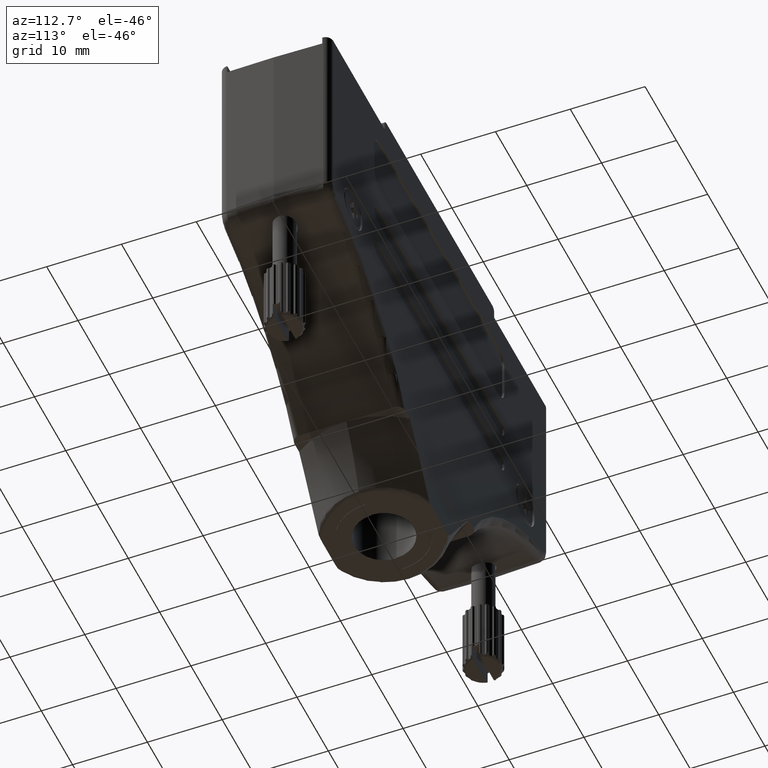
[diagram: clean part render]
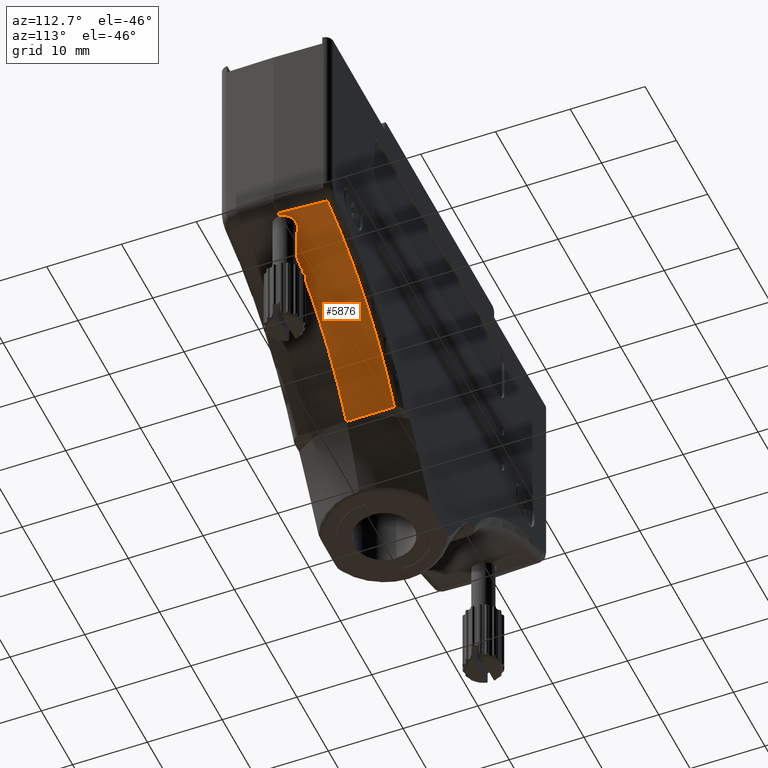
[diagram: same view with one face highlighted and labeled with its STEP entity id]
A machine part, auxiliary view. The second image highlights one B-rep face of the part: STEP entity #5876.
In plain terms, the highlighted cylindrical surface (partial cylindrical patch) has radius 36.7113 mm, axis along (-0, -1, -0).
Its self-contained STEP definition (entity closure, byte-faithful):
#1419 = CYLINDRICAL_SURFACE ( 'NONE', #16395, 36.71126982180972220 ) ;
#1708 = VERTEX_POINT ( 'NONE', #6583 ) ;
#1860 = LINE ( 'NONE', #3828, #2525 ) ;
#1962 = DIRECTION ( 'NONE',  ( -0.000000000000000000, -1.000000000000000000, 0.000000000000000000 ) ) ;
#2048 = CARTESIAN_POINT ( 'NONE',  ( -33.65749201946204039, -2.135932111310845816, -27.89259562632341272 ) ) ;
#2093 = CARTESIAN_POINT ( 'NONE',  ( -33.34999999999999432, -0.2172257269678418423, -27.97736816581497266 ) ) ;
#2328 = ORIENTED_EDGE ( 'NONE', *, *, #16424, .T. ) ;
#2343 = CARTESIAN_POINT ( 'NONE',  ( -31.63974383908267640, -1.599454190310966917, -28.50100463175703780 ) ) ;
#2511 = ORIENTED_EDGE ( 'NONE', *, *, #9136, .T. ) ;
#2525 = VECTOR ( 'NONE', #18827, 1000.000000000000000 ) ;
#2597 = CARTESIAN_POINT ( 'NONE',  ( -32.43850471015925763, -1.447988229824081374, -28.24503779083169519 ) ) ;
#3420 = VERTEX_POINT ( 'NONE', #23496 ) ;
#3538 = CIRCLE ( 'NONE', #23573, 36.71126982180972220 ) ;
#3656 =( BOUNDED_CURVE ( )  B_SPLINE_CURVE ( 3, ( #13135, #9571, #2048, #9702 ),
 .UNSPECIFIED., .F., .F. ) 
 B_SPLINE_CURVE_WITH_KNOTS ( ( 4, 4 ),
 ( 4.442254719440811073, 4.451234110736428384 ),
 .UNSPECIFIED. ) 
 CURVE ( )  GEOMETRIC_REPRESENTATION_ITEM ( )  RATIONAL_B_SPLINE_CURVE ( ( 1.000000000000000000, 0.9999932808889498981, 0.9999932808889498981, 1.000000000000000000 ) ) 
 REPRESENTATION_ITEM ( '' )  );
#3828 = CARTESIAN_POINT ( 'NONE',  ( -12.00182045457186319, -83.27524299796344565, -44.04999999999999005 ) ) ;
#3940 = DIRECTION ( 'NONE',  ( 0.000000000000000000, 0.000000000000000000, -1.000000000000000000 ) ) ;
#3959 = CARTESIAN_POINT ( 'NONE',  ( -32.70584942024062514, -1.287279212786575311, -28.16385400188723409 ) ) ;
#4707 = CIRCLE ( 'NONE', #10619, 36.71126982180972220 ) ;
#5388 = VERTEX_POINT ( 'NONE', #15111 ) ;
#5876 = ADVANCED_FACE ( 'NONE', ( #21970 ), #1419, .F. ) ;
#6159 = ORIENTED_EDGE ( 'NONE', *, *, #8438, .F. ) ;
#6171 = CARTESIAN_POINT ( 'NONE',  ( -32.78757376440607629, -1.222562826784352463, -28.13949963657072928 ) ) ;
#6239 = VERTEX_POINT ( 'NONE', #21194 ) ;
#6296 = CARTESIAN_POINT ( 'NONE',  ( -30.77973672701777019, -1.289020953029271332, -28.79919598772691458 ) ) ;
#6583 = CARTESIAN_POINT ( 'NONE',  ( -30.15000000000000213, 1.774346614351042933E-15, -29.03336873510264127 ) ) ;
#8001 = CARTESIAN_POINT ( 'NONE',  ( -30.15000000000000213, 1.774346614351042933E-15, -29.03336873510264127 ) ) ;
#8438 = EDGE_CURVE ( 'NONE', #10520, #1708, #4707, .T. ) ;
#8482 = B_SPLINE_CURVE_WITH_KNOTS ( 'NONE', 3,
 ( #8001, #9619, #11705, #9749, #13665, #22880, #19190, #6296, #13540, #21047, #11953, #11465, #2343, #9872, #20802, #22646, #15507, #2597, #23006, #3959, #6171, #15144, #21297, #13795, #2093, #17086 ),
 .UNSPECIFIED., .F., .F.,
 ( 4, 2, 2, 2, 2, 2, 2, 2, 2, 2, 2, 2, 4 ),
 ( 1.177666164395192714E-18, 0.0003210891310338258135, 0.0006421782620676504344, 0.001284356524135303905, 0.001926534786202957266, 0.002247623917236785899, 0.002568713048270614314, 0.002889802179304442296, 0.003210891310338270278, 0.003531980441372098260, 0.003853069572405926242, 0.004495247834473596951, 0.005137426096541267660 ),
 .UNSPECIFIED. ) ;
#9136 = EDGE_CURVE ( 'NONE', #6239, #5388, #3538, .T. ) ;
#9571 = CARTESIAN_POINT ( 'NONE',  ( -33.55146430885534414, -4.269279778844141227, -27.92144308516741091 ) ) ;
#9619 = CARTESIAN_POINT ( 'NONE',  ( -30.15000000000000568, -0.1086217101157255227, -29.03336873510265193 ) ) ;
#9702 = CARTESIAN_POINT ( 'NONE',  ( -33.76364817732611812, 0.000000000000000000, -27.86422448877492286 ) ) ;
#9749 = CARTESIAN_POINT ( 'NONE',  ( -30.20365866929434517, -0.4245462276933599233, -29.01292599533478622 ) ) ;
#9797 = DIRECTION ( 'NONE',  ( 0.000000000000000000, 0.000000000000000000, -1.000000000000000000 ) ) ;
#9872 = CARTESIAN_POINT ( 'NONE',  ( -31.84380121003119868, -1.600503502314263082, -28.43369094446218170 ) ) ;
#10301 = DIRECTION ( 'NONE',  ( 0.000000000000000000, 0.000000000000000000, 1.000000000000000000 ) ) ;
#10472 = CARTESIAN_POINT ( 'NONE',  ( -43.24236715719469260, 0.000000000000000000, -63.33070469798650493 ) ) ;
#10520 = VERTEX_POINT ( 'NONE', #22546 ) ;
#10619 = AXIS2_PLACEMENT_3D ( 'NONE', #10472, #19550, #17947 ) ;
#11160 = CARTESIAN_POINT ( 'NONE',  ( -43.24236715719469260, -6.400000000000003020, -63.33070469798650493 ) ) ;
#11465 = CARTESIAN_POINT ( 'NONE',  ( -31.53877317291414784, -1.589264183005321796, -28.53480902098867489 ) ) ;
#11604 = EDGE_CURVE ( 'NONE', #3420, #12499, #14793, .T. ) ;
#11705 = CARTESIAN_POINT ( 'NONE',  ( -30.16094569094726907, -0.2152148075253071668, -29.02918481126687666 ) ) ;
#11953 = CARTESIAN_POINT ( 'NONE',  ( -31.33892365189137763, -1.549643072417002942, -28.60266846169096056 ) ) ;
#12025 = EDGE_CURVE ( 'NONE', #5388, #12499, #3656, .T. ) ;
#12499 = VERTEX_POINT ( 'NONE', #20607 ) ;
#12501 = CARTESIAN_POINT ( 'NONE',  ( -43.24236715719469260, -83.27524299796344565, -63.33070469798650493 ) ) ;
#13135 = CARTESIAN_POINT ( 'NONE',  ( -33.44556718274192519, -6.399999999999995914, -27.95076628381908534 ) ) ;
#13464 = DIRECTION ( 'NONE',  ( 0.000000000000000000, -1.000000000000000000, 0.000000000000000000 ) ) ;
#13540 = CARTESIAN_POINT ( 'NONE',  ( -30.95615767112005301, -1.404090721711050094, -28.73581432346434283 ) ) ;
#13665 = CARTESIAN_POINT ( 'NONE',  ( -30.23602409653427259, -0.5283735715662347676, -29.00062532250666791 ) ) ;
#13795 = CARTESIAN_POINT ( 'NONE',  ( -33.30598325495436995, -0.4300910614656501818, -27.98960592449867946 ) ) ;
#14793 = CIRCLE ( 'NONE', #23022, 36.71126982180972220 ) ;
#15111 = CARTESIAN_POINT ( 'NONE',  ( -33.44556718274192519, -6.399999999999995914, -27.95076628381908534 ) ) ;
#15144 = CARTESIAN_POINT ( 'NONE',  ( -33.01573481591189108, -1.001395078809259820, -28.07225224458001378 ) ) ;
#15507 = CARTESIAN_POINT ( 'NONE',  ( -32.24624682273337584, -1.524613964434142543, -28.30481707633832755 ) ) ;
#15691 = EDGE_LOOP ( 'NONE', ( #2511, #16801, #15803, #15748, #6159, #2328 ) ) ;
#15748 = ORIENTED_EDGE ( 'NONE', *, *, #20268, .F. ) ;
#15803 = ORIENTED_EDGE ( 'NONE', *, *, #11604, .F. ) ;
#16090 = CARTESIAN_POINT ( 'NONE',  ( -43.24236715719469260, 0.000000000000000000, -63.33070469798650493 ) ) ;
#16395 = AXIS2_PLACEMENT_3D ( 'NONE', #12501, #19996, #10301 ) ;
#16424 = EDGE_CURVE ( 'NONE', #10520, #6239, #1860, .T. ) ;
#16801 = ORIENTED_EDGE ( 'NONE', *, *, #12025, .T. ) ;
#17086 = CARTESIAN_POINT ( 'NONE',  ( -33.35000000000000142, 1.340665745356841553E-15, -27.97736816581499752 ) ) ;
#17947 = DIRECTION ( 'NONE',  ( 0.000000000000000000, 0.000000000000000000, -1.000000000000000000 ) ) ;
#18827 = DIRECTION ( 'NONE',  ( -0.000000000000000000, -1.000000000000000000, -0.000000000000000000 ) ) ;
#19190 = CARTESIAN_POINT ( 'NONE',  ( -30.48323315555577651, -0.9991434321775271021, -28.90764918900927682 ) ) ;
#19550 = DIRECTION ( 'NONE',  ( -0.000000000000000000, -1.000000000000000000, 0.000000000000000000 ) ) ;
#19996 = DIRECTION ( 'NONE',  ( 0.000000000000000000, 1.000000000000000000, 0.000000000000000000 ) ) ;
#20268 = EDGE_CURVE ( 'NONE', #1708, #3420, #8482, .T. ) ;
#20607 = CARTESIAN_POINT ( 'NONE',  ( -33.76364817732611812, 0.000000000000000000, -27.86422448877492286 ) ) ;
#20802 = CARTESIAN_POINT ( 'NONE',  ( -31.94725806731534590, -1.591075109136796728, -28.40007423083723737 ) ) ;
#21047 = CARTESIAN_POINT ( 'NONE',  ( -31.23958453553234094, -1.519832277954207056, -28.63689323002240883 ) ) ;
#21194 = CARTESIAN_POINT ( 'NONE',  ( -12.00182045457186319, -6.400000000000003020, -44.04999999999999005 ) ) ;
#21297 = CARTESIAN_POINT ( 'NONE',  ( -33.13763531188891420, -0.8249426962219613690, -28.03737130618874218 ) ) ;
#21970 = FACE_OUTER_BOUND ( 'NONE', #15691, .T. ) ;
#22546 = CARTESIAN_POINT ( 'NONE',  ( -12.00182045457186319, 0.000000000000000000, -44.04999999999999005 ) ) ;
#22646 = CARTESIAN_POINT ( 'NONE',  ( -32.14795554483475115, -1.553081495727422379, -28.33581271129301271 ) ) ;
#22880 = CARTESIAN_POINT ( 'NONE',  ( -30.36084503054768646, -0.8218607792465923989, -28.95350831921101431 ) ) ;
#23006 = CARTESIAN_POINT ( 'NONE',  ( -32.53183669816539947, -1.399809723944145823, -28.21646070514093907 ) ) ;
#23022 = AXIS2_PLACEMENT_3D ( 'NONE', #16090, #1962, #3940 ) ;
#23496 = CARTESIAN_POINT ( 'NONE',  ( -33.35000000000000142, 1.340665745356841553E-15, -27.97736816581499752 ) ) ;
#23573 = AXIS2_PLACEMENT_3D ( 'NONE', #11160, #13464, #9797 ) ;